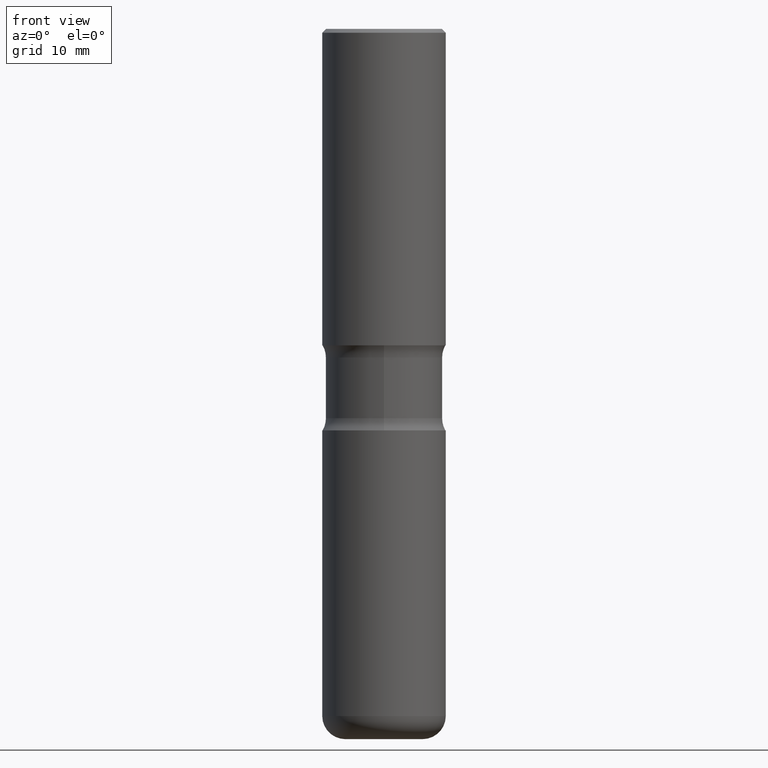
[diagram: clean part render]
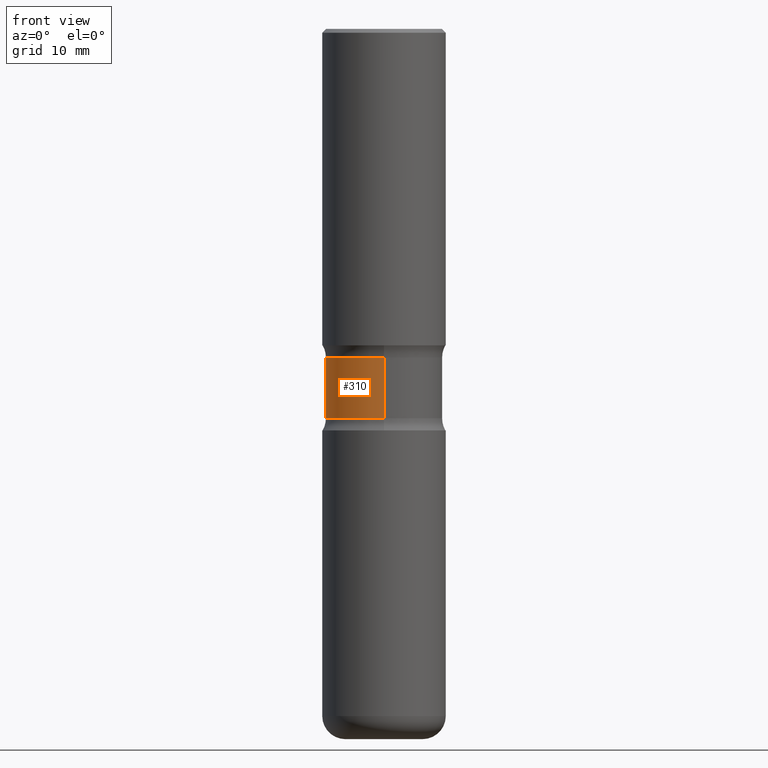
[diagram: same view with one face highlighted and labeled with its STEP entity id]
A machine part, front view. The second image highlights one B-rep face of the part: STEP entity #310.
In plain terms, the highlighted cylindrical surface (partial cylindrical patch) has radius 7.5819 mm, axis along (0, -0, -1).
Its self-contained STEP definition (entity closure, byte-faithful):
#26 = VERTEX_POINT ( 'NONE', #202 ) ;
#41 = LINE ( 'NONE', #122, #426 ) ;
#47 = CIRCLE ( 'NONE', #124, 0.2984999999999998765 ) ;
#72 = CYLINDRICAL_SURFACE ( 'NONE', #554, 0.2984999999999998210 ) ;
#122 = CARTESIAN_POINT ( 'NONE',  ( 2.084414359289437372E-15, 0.2984999999999871645, -3.622000000000000330 ) ) ;
#124 = AXIS2_PLACEMENT_3D ( 'NONE', #229, #201, #542 ) ;
#126 = DIRECTION ( 'NONE',  ( 2.431229257173367832E-29, -3.511873183492796268E-15, -1.000000000000000000 ) ) ;
#129 = DIRECTION ( 'NONE',  ( 2.431229257173367832E-29, -3.511873183492796268E-15, -1.000000000000000000 ) ) ;
#141 = EDGE_CURVE ( 'NONE', #371, #427, #41, .T. ) ;
#173 = DIRECTION ( 'NONE',  ( 6.982962677686266711E-15, 1.000000000000000000, -3.660767830705882322E-15 ) ) ;
#186 = FACE_OUTER_BOUND ( 'NONE', #422, .T. ) ;
#188 = ORIENTED_EDGE ( 'NONE', *, *, #255, .F. ) ;
#200 = ORIENTED_EDGE ( 'NONE', *, *, #141, .T. ) ;
#201 = DIRECTION ( 'NONE',  ( 2.431229257173367832E-29, -3.511873183492796268E-15, -1.000000000000000000 ) ) ;
#202 = CARTESIAN_POINT ( 'NONE',  ( -2.104286248366424083E-15, -0.2985000000000068154, -1.985216957964291984 ) ) ;
#212 = CIRCLE ( 'NONE', #303, 0.2984999999999998210 ) ;
#229 = CARTESIAN_POINT ( 'NONE',  ( 4.104093333986238710E-29, -5.844444904265456773E-15, -1.676083042035705128 ) ) ;
#255 = EDGE_CURVE ( 'NONE', #343, #26, #274, .T. ) ;
#274 = LINE ( 'NONE', #372, #497 ) ;
#301 = DIRECTION ( 'NONE',  ( 6.982962677686266711E-15, 1.000000000000000000, -3.660767830705882322E-15 ) ) ;
#303 = AXIS2_PLACEMENT_3D ( 'NONE', #525, #513, #301 ) ;
#310 = ADVANCED_FACE ( 'NONE', ( #186 ), #72, .T. ) ;
#334 = CARTESIAN_POINT ( 'NONE',  ( -2.104286248366432366E-15, -0.2985000000000057052, -1.676083042035704018 ) ) ;
#343 = VERTEX_POINT ( 'NONE', #334 ) ;
#371 = VERTEX_POINT ( 'NONE', #471 ) ;
#372 = CARTESIAN_POINT ( 'NONE',  ( -2.047858652334712692E-15, -0.2985000000000124776, -3.621999999999998110 ) ) ;
#405 = CARTESIAN_POINT ( 'NONE',  ( 2.084414359289397929E-15, 0.2984999999999928821, -1.985216957964294204 ) ) ;
#422 = EDGE_LOOP ( 'NONE', ( #188, #474, #200, #491 ) ) ;
#426 = VECTOR ( 'NONE', #126, 39.37007874015748143 ) ;
#427 = VERTEX_POINT ( 'NONE', #405 ) ;
#460 = EDGE_CURVE ( 'NONE', #343, #371, #47, .T. ) ;
#471 = CARTESIAN_POINT ( 'NONE',  ( 2.084414359289390435E-15, 0.2984999999999940479, -1.676083042035706239 ) ) ;
#474 = ORIENTED_EDGE ( 'NONE', *, *, #460, .T. ) ;
#491 = ORIENTED_EDGE ( 'NONE', *, *, #517, .F. ) ;
#497 = VECTOR ( 'NONE', #541, 39.37007874015748143 ) ;
#509 = CARTESIAN_POINT ( 'NONE',  ( 8.835063574218829825E-29, -1.267825848624413908E-14, -3.621999999999999442 ) ) ;
#513 = DIRECTION ( 'NONE',  ( 2.431229257173367832E-29, -3.511873183492796268E-15, -1.000000000000000000 ) ) ;
#517 = EDGE_CURVE ( 'NONE', #26, #427, #212, .T. ) ;
#525 = CARTESIAN_POINT ( 'NONE',  ( 4.855668754776393966E-29, -6.930084013723182929E-15, -1.985216957964293094 ) ) ;
#541 = DIRECTION ( 'NONE',  ( 2.431229257173367832E-29, -3.511873183492796268E-15, -1.000000000000000000 ) ) ;
#542 = DIRECTION ( 'NONE',  ( 6.982962677686265922E-15, 1.000000000000000000, -3.660767830705881533E-15 ) ) ;
#554 = AXIS2_PLACEMENT_3D ( 'NONE', #509, #129, #173 ) ;